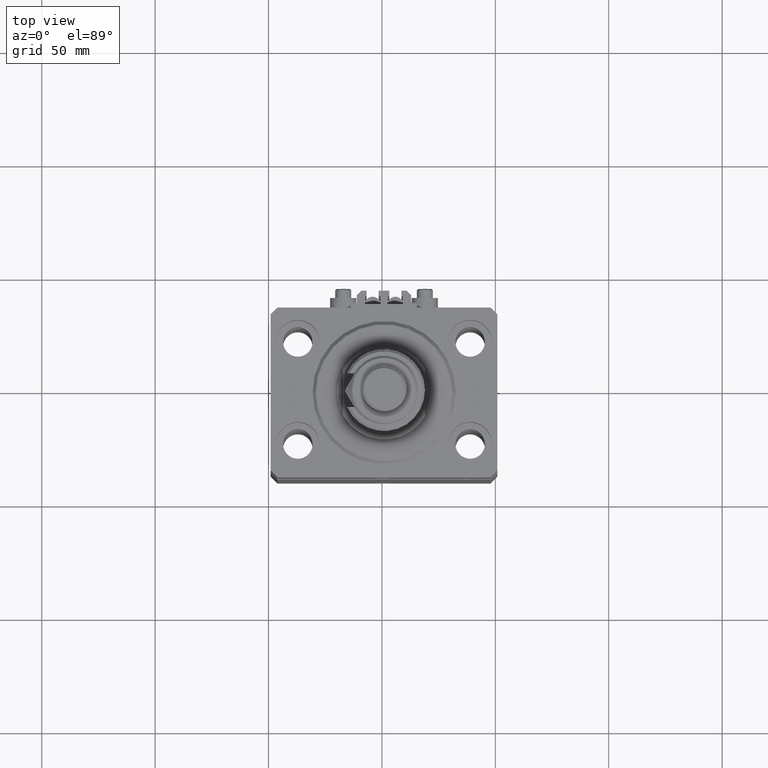
[diagram: clean part render]
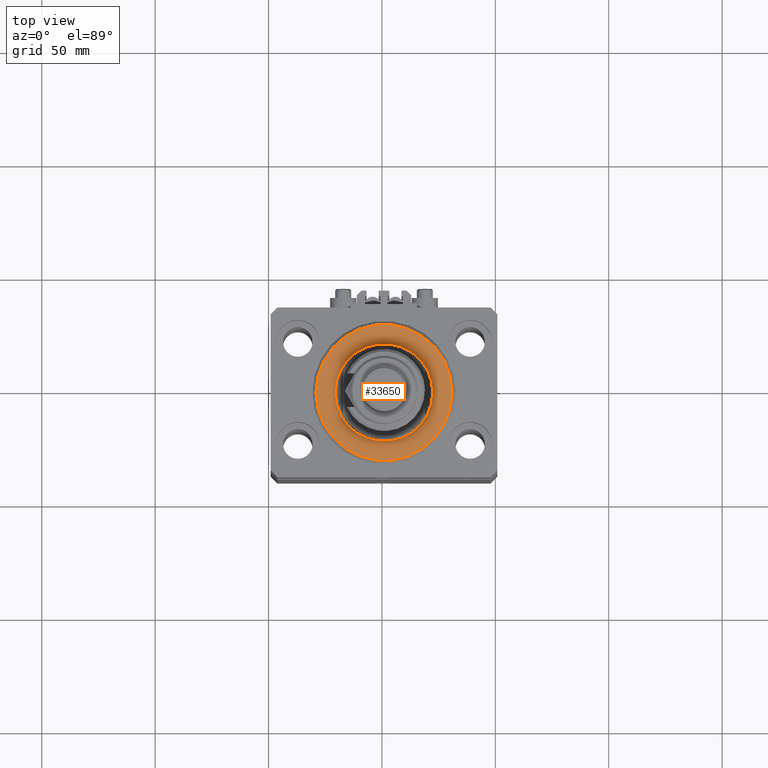
[diagram: same view with one face highlighted and labeled with its STEP entity id]
A machine part, top view. The second image highlights one B-rep face of the part: STEP entity #33650.
In plain terms, the highlighted planar face has unit normal (0, 0, -1).
Its self-contained STEP definition (entity closure, byte-faithful):
#1464 = EDGE_LOOP ( 'NONE', ( #48381, #27152 ) ) ;
#3085 = EDGE_CURVE ( 'NONE', #4005, #27672, #37118, .T. ) ;
#3769 = FACE_BOUND ( 'NONE', #14017, .T. ) ;
#4005 = VERTEX_POINT ( 'NONE', #32085 ) ;
#4082 = EDGE_CURVE ( 'NONE', #27805, #23462, #20421, .T. ) ;
#7215 = DIRECTION ( 'NONE',  ( 1.000000000000000000, 0.000000000000000000, 0.000000000000000000 ) ) ;
#7449 = CARTESIAN_POINT ( 'NONE',  ( 0.000000000000000000, 0.000000000000000000, 0.000000000000000000 ) ) ;
#9108 = DIRECTION ( 'NONE',  ( -0.000000000000000000, -0.000000000000000000, -1.000000000000000000 ) ) ;
#9404 = DIRECTION ( 'NONE',  ( 0.000000000000000000, 0.000000000000000000, 1.000000000000000000 ) ) ;
#11640 = AXIS2_PLACEMENT_3D ( 'NONE', #7449, #42583, #35485 ) ;
#14017 = EDGE_LOOP ( 'NONE', ( #33261, #37542 ) ) ;
#17240 = CARTESIAN_POINT ( 'NONE',  ( 0.000000000000000000, 0.000000000000000000, 0.000000000000000000 ) ) ;
#17501 = DIRECTION ( 'NONE',  ( 1.000000000000000000, 0.000000000000000000, 0.000000000000000000 ) ) ;
#20421 = CIRCLE ( 'NONE', #22109, 30.00000000000002132 ) ;
#22006 = CARTESIAN_POINT ( 'NONE',  ( -30.00000000000002132, 3.765788907378112117E-15, 0.000000000000000000 ) ) ;
#22109 = AXIS2_PLACEMENT_3D ( 'NONE', #31318, #47311, #7215 ) ;
#23213 = CARTESIAN_POINT ( 'NONE',  ( 0.000000000000000000, 0.000000000000000000, 0.000000000000000000 ) ) ;
#23462 = VERTEX_POINT ( 'NONE', #22006 ) ;
#24994 = CARTESIAN_POINT ( 'NONE',  ( 30.00000000000002132, 0.000000000000000000, 0.000000000000000000 ) ) ;
#26190 = DIRECTION ( 'NONE',  ( 1.000000000000000000, 0.000000000000000000, 0.000000000000000000 ) ) ;
#26791 = AXIS2_PLACEMENT_3D ( 'NONE', #17240, #9108, #17501 ) ;
#27152 = ORIENTED_EDGE ( 'NONE', *, *, #39358, .T. ) ;
#27595 = CIRCLE ( 'NONE', #46047, 21.50000000000000000 ) ;
#27672 = VERTEX_POINT ( 'NONE', #39178 ) ;
#27805 = VERTEX_POINT ( 'NONE', #24994 ) ;
#29334 = CIRCLE ( 'NONE', #26791, 30.00000000000002132 ) ;
#31318 = CARTESIAN_POINT ( 'NONE',  ( 0.000000000000000000, 0.000000000000000000, 0.000000000000000000 ) ) ;
#32085 = CARTESIAN_POINT ( 'NONE',  ( 21.50000000000000000, 0.000000000000000000, -2.168404344971008868E-16 ) ) ;
#33261 = ORIENTED_EDGE ( 'NONE', *, *, #3085, .T. ) ;
#33650 = ADVANCED_FACE ( 'NONE', ( #3769, #43612 ), #43361, .F. ) ;
#35485 = DIRECTION ( 'NONE',  ( 1.000000000000000000, 0.000000000000000000, -0.000000000000000000 ) ) ;
#37118 = CIRCLE ( 'NONE', #42170, 21.50000000000000000 ) ;
#37542 = ORIENTED_EDGE ( 'NONE', *, *, #47996, .T. ) ;
#39178 = CARTESIAN_POINT ( 'NONE',  ( -21.50000000000000000, 2.632990618166809630E-15, -2.168404344971008868E-16 ) ) ;
#39190 = DIRECTION ( 'NONE',  ( 0.000000000000000000, 0.000000000000000000, 1.000000000000000000 ) ) ;
#39358 = EDGE_CURVE ( 'NONE', #23462, #27805, #29334, .T. ) ;
#41135 = CARTESIAN_POINT ( 'NONE',  ( 0.000000000000000000, 0.000000000000000000, 0.000000000000000000 ) ) ;
#42170 = AXIS2_PLACEMENT_3D ( 'NONE', #41135, #9404, #26190 ) ;
#42583 = DIRECTION ( 'NONE',  ( 0.000000000000000000, 0.000000000000000000, 1.000000000000000000 ) ) ;
#43361 = PLANE ( 'NONE',  #11640 ) ;
#43612 = FACE_OUTER_BOUND ( 'NONE', #1464, .T. ) ;
#46047 = AXIS2_PLACEMENT_3D ( 'NONE', #23213, #39190, #51251 ) ;
#47311 = DIRECTION ( 'NONE',  ( -0.000000000000000000, -0.000000000000000000, -1.000000000000000000 ) ) ;
#47996 = EDGE_CURVE ( 'NONE', #27672, #4005, #27595, .T. ) ;
#48381 = ORIENTED_EDGE ( 'NONE', *, *, #4082, .T. ) ;
#51251 = DIRECTION ( 'NONE',  ( 1.000000000000000000, 0.000000000000000000, 0.000000000000000000 ) ) ;